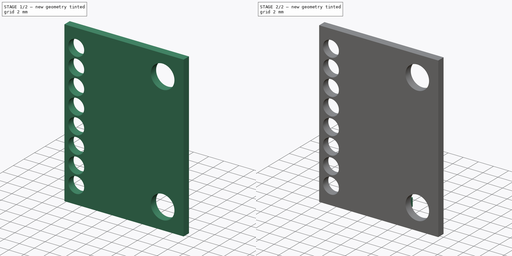
[diagram: build sequence overview — one tinted view per stage of 2, left to right]
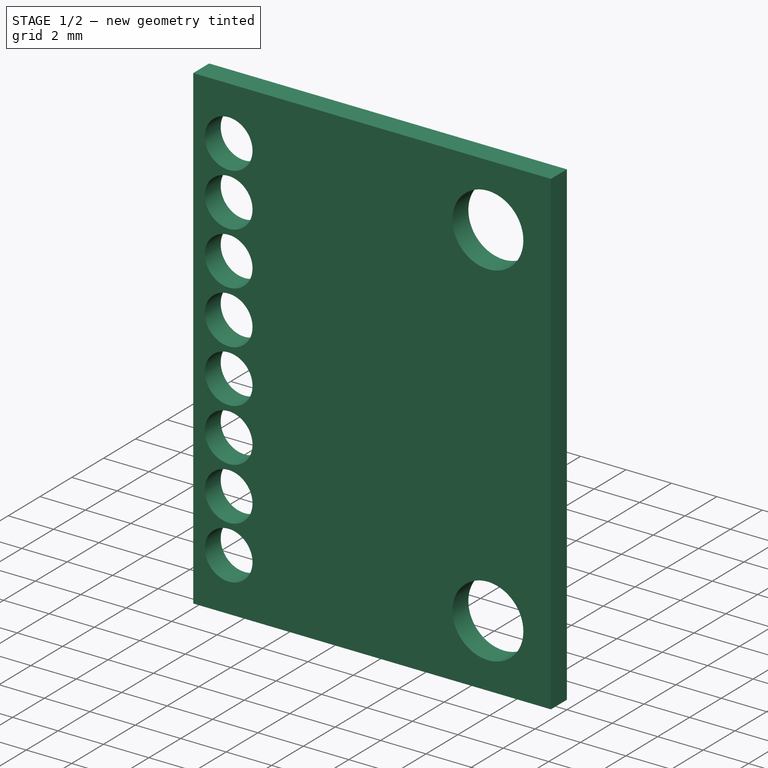
[diagram: stage 1 of 2 — iso view after this stage's code; geometry added in this stage tinted green]
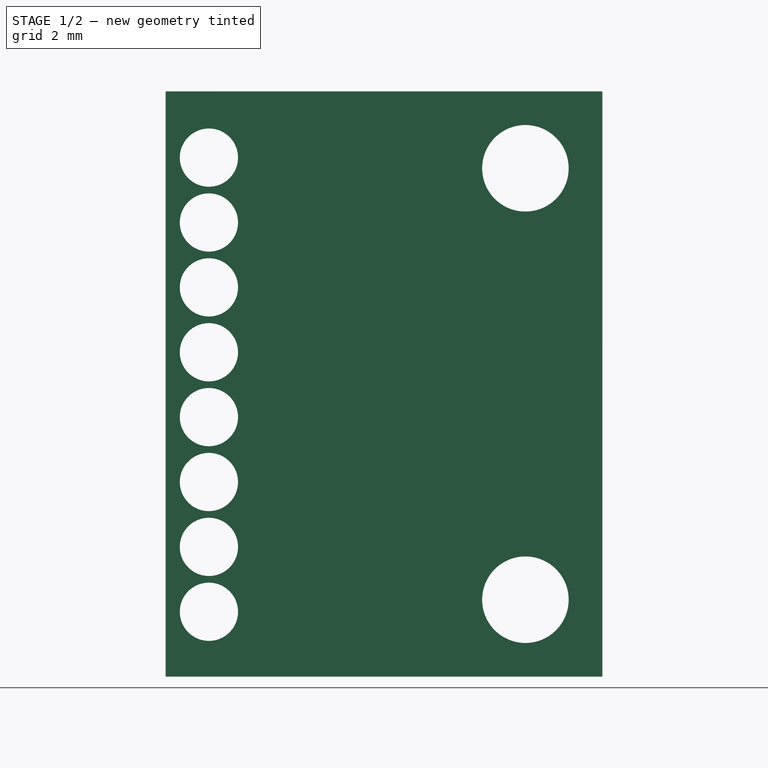
[diagram: stage 1 of 2 — front view after this stage's code; geometry added in this stage tinted green]
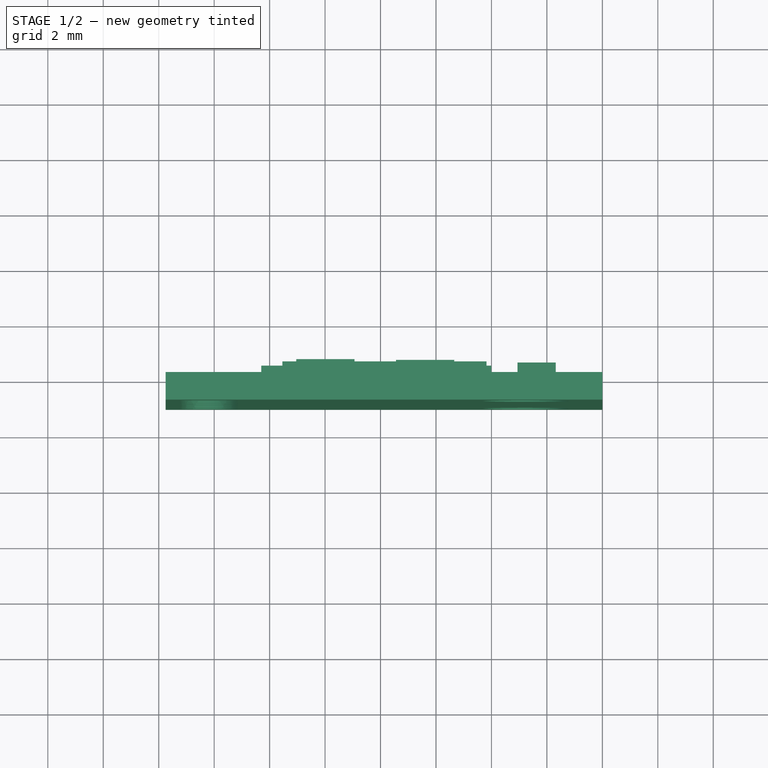
[diagram: stage 1 of 2 — top view after this stage's code; geometry added in this stage tinted green]
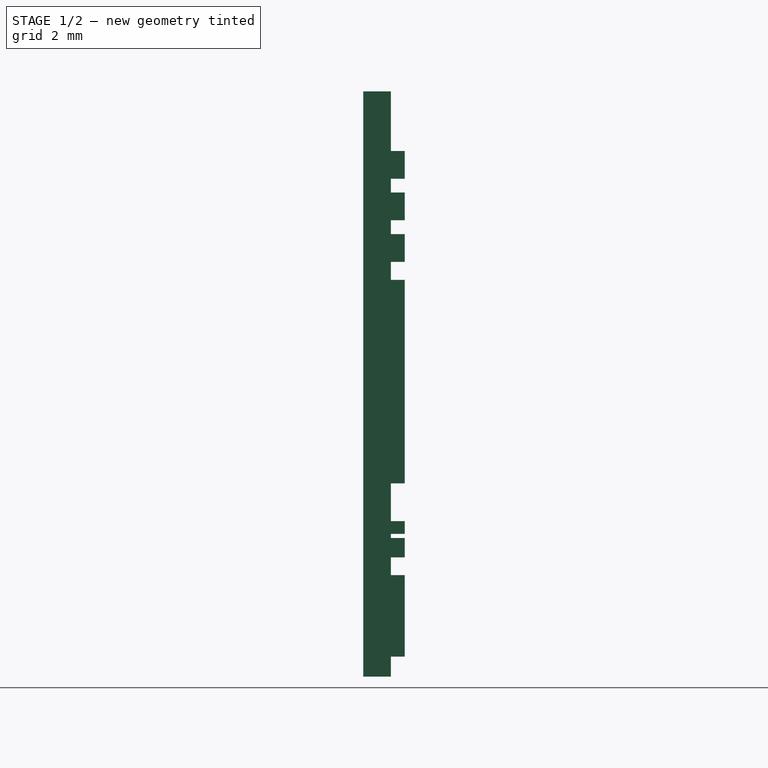
[diagram: stage 1 of 2 — right view after this stage's code; geometry added in this stage tinted green]
FCSTD DOCUMENT  (FreeCAD 1.0R38641 +678 (Git))
Label: MPU6050
License: All rights reserved
LicenseURL: https://en.wikipedia.org/wiki/All_rights_reserved
objects: Sketcher::SketchObject×3, PartDesign::Pad×3, PartDesign::CoordinateSystem×1, PartDesign::Body×1
note: 17 computed .brp shape members not serialized (recipe doc carries the construction recipe); baked Part::Feature solids carry a one-line shape summary decoded from their .brp

FEATURE [Sketcher::SketchObject] Sketch
  ArcFitTolerance = 1e-06
  AttachmentSupport = -> [XZ_Plane]
  FullyConstrained = true
  MakeInternals = false
  MapMode = 5
  Placement = pos=(0,0,0) rot=(1,0,0;1.5708rad)
  sketch-geometry (15):
    g0: LineSegment StartX=0 StartY=0 StartZ=0 EndX=-15.75 EndY=0 EndZ=0
    g1: LineSegment StartX=-15.75 StartY=0 StartZ=0 EndX=-15.75 EndY=-21.11 EndZ=0
    g2: LineSegment StartX=-15.75 StartY=-21.11 StartZ=0 EndX=0 EndY=-21.11 EndZ=0
    g3: LineSegment StartX=0 StartY=-21.11 StartZ=0 EndX=0 EndY=0 EndZ=0
    g4: Circle CenterX=-2.775 CenterY=-2.775 CenterZ=0 NormalX=0 NormalY=0 NormalZ=1 AngleXU=0 Radius=1.56
    g5: Circle CenterX=-2.775 CenterY=-18.335 CenterZ=0 NormalX=0 NormalY=0 NormalZ=1 AngleXU=0 Radius=1.56
    g6: Circle CenterX=-14.19 CenterY=-2.39 CenterZ=0 NormalX=0 NormalY=0 NormalZ=1 AngleXU=0 Radius=1.05
    g7: Circle CenterX=-14.19 CenterY=-4.73 CenterZ=0 NormalX=0 NormalY=0 NormalZ=1 AngleXU=0 Radius=1.05
    g8: Circle CenterX=-14.19 CenterY=-7.07 CenterZ=0 NormalX=0 NormalY=0 NormalZ=1 AngleXU=0 Radius=1.05
    g9: Circle CenterX=-14.19 CenterY=-9.41 CenterZ=0 NormalX=0 NormalY=0 NormalZ=1 AngleXU=0 Radius=1.05
    g10: Circle CenterX=-14.19 CenterY=-11.75 CenterZ=0 NormalX=0 NormalY=0 NormalZ=1 AngleXU=0 Radius=1.05
    g11: Circle CenterX=-14.19 CenterY=-14.09 CenterZ=0 NormalX=0 NormalY=0 NormalZ=1 AngleXU=0 Radius=1.05
    g12: Circle CenterX=-14.19 CenterY=-16.43 CenterZ=0 NormalX=0 NormalY=0 NormalZ=1 AngleXU=0 Radius=1.05
    g13: Circle CenterX=-14.19 CenterY=-18.77 CenterZ=0 NormalX=0 NormalY=0 NormalZ=1 AngleXU=0 Radius=1.05
    g14: LineSegment [constr] StartX=-14.19 StartY=0 StartZ=0 EndX=-14.19 EndY=-21.11 EndZ=0
  constraints (45):
    c: Coincident(g0,g1)
    c: Coincident(g1,g2)
    c: Coincident(g2,g3)
    c: Coincident(g3,g0)
    c: Horizontal(g0)
    c: Horizontal(g2)
    c: Vertical(g1)
    c: Vertical(g3)
    c: Coincident(g0,g-1)
    c: DistanceX(g2,g2) = 15.75
    c: DistanceY(g1,g1) = 21.11
    c: Equal(g5,g4)
    c: DistanceY(g5,g4) = 15.56
    c: Diameter(g4) = 3.12
    c: DistanceY(g4,g0) = 2.775
    c: DistanceX(g4,g0) = 2.775
    c: DistanceX(g5,g2) = 2.775
    c: Diameter(g6) = 2.1
    c: Equal(g6,g7)
    c: Equal(g7,g8)
    c: Equal(g8,g9)
    c: Equal(g9,g10)
    c: Equal(g10,g11)
    c: Equal(g11,g12)
    c: Equal(g12,g13)
    c: PointOnObject(g14,g0)
    c: PointOnObject(g14,g2)
    c: Vertical(g14)
    c: DistanceX(g0,g14) = 1.56
    c: PointOnObject(g6,g14)
    c: PointOnObject(g7,g14)
    c: PointOnObject(g8,g14)
    c: PointOnObject(g9,g14)
    c: PointOnObject(g10,g14)
    c: PointOnObject(g12,g14)
    c: PointOnObject(g11,g14)
    c: PointOnObject(g13,g14)
    c: DistanceY(g7,g6) = 2.34
    c: DistanceY(g8,g7) = 2.34
    c: DistanceY(g9,g8) = 2.34
    c: DistanceY(g10,g9) = 2.34
    c: DistanceY(g11,g10) = 2.34
    c: DistanceY(g12,g11) = 2.34
    c: DistanceY(g13,g12) = 2.34
    c: DistanceY(g6,g0) = 2.39
FEATURE [PartDesign::Pad] Pad  label="Pad_Plate"
  Direction = (0,-1,2e-16)
  Length = 1
  Length2 = 10
  Placement = pos=(0,0,0) rot=(1,0,0;1.5708rad)
  Profile = -> Sketch
  ReferenceAxis = -> Sketch [N_Axis]
  Refine = true
  Suppressed = false
  Type = 0
FEATURE [Sketcher::SketchObject] Sketch001
  ArcFitTolerance = 1e-06
  AttachmentSupport = -> [XZ_Plane]
  FullyConstrained = true
  MakeInternals = false
  MapMode = 5
  Placement = pos=(0,0,0) rot=(1,0,0;1.5708rad)
  sketch-geometry (76):
    g0: LineSegment StartX=-8.94 StartY=-2.15 StartZ=0 EndX=-11.04 EndY=-2.15 EndZ=0
    g1: LineSegment StartX=-11.04 StartY=-2.15 StartZ=0 EndX=-11.04 EndY=-3.15 EndZ=0
    g2: LineSegment StartX=-11.04 StartY=-3.15 StartZ=0 EndX=-8.94 EndY=-3.15 EndZ=0
    g3: LineSegment StartX=-8.94 StartY=-3.15 StartZ=0 EndX=-8.94 EndY=-2.15 EndZ=0
    g4: LineSegment StartX=-8.94 StartY=-3.65 StartZ=0 EndX=-11.04 EndY=-3.65 EndZ=0
    g5: LineSegment StartX=-11.04 StartY=-3.65 StartZ=0 EndX=-11.04 EndY=-4.65 EndZ=0
    g6: LineSegment StartX=-11.04 StartY=-4.65 StartZ=0 EndX=-8.94 EndY=-4.65 EndZ=0
    g7: LineSegment StartX=-8.94 StartY=-4.65 StartZ=0 EndX=-8.94 EndY=-3.65 EndZ=0
    g8: LineSegment StartX=-8.94 StartY=-5.15 StartZ=0 EndX=-11.04 EndY=-5.15 EndZ=0
    g9: LineSegment StartX=-11.04 StartY=-5.15 StartZ=0 EndX=-11.04 EndY=-6.15 EndZ=0
    g10: LineSegment StartX=-11.04 StartY=-6.15 StartZ=0 EndX=-8.94 EndY=-6.15 EndZ=0
    g11: LineSegment StartX=-8.94 StartY=-6.15 StartZ=0 EndX=-8.94 EndY=-5.15 EndZ=0
    g12: LineSegment StartX=-5.34 StartY=-3.65 StartZ=0 EndX=-7.44 EndY=-3.65 EndZ=0
    g13: LineSegment StartX=-7.44 StartY=-3.65 StartZ=0 EndX=-7.44 EndY=-4.65 EndZ=0
    g14: LineSegment StartX=-7.44 StartY=-4.65 StartZ=0 EndX=-5.34 EndY=-4.65 EndZ=0
    g15: LineSegment StartX=-5.34 StartY=-4.65 StartZ=0 EndX=-5.34 EndY=-3.65 EndZ=0
    g16: LineSegment StartX=-5.34 StartY=-5.15 StartZ=0 EndX=-7.44 EndY=-5.15 EndZ=0
    g17: LineSegment StartX=-7.44 StartY=-5.15 StartZ=0 EndX=-7.44 EndY=-6.15 EndZ=0
    g18: LineSegment StartX=-7.44 StartY=-6.15 StartZ=0 EndX=-5.34 EndY=-6.15 EndZ=0
    g19: LineSegment StartX=-5.34 StartY=-6.15 StartZ=0 EndX=-5.34 EndY=-5.15 EndZ=0
    g20: LineSegment StartX=-1.68 StartY=-9.16 StartZ=0 EndX=-3.06 EndY=-9.16 EndZ=0
    g21: LineSegment StartX=-3.06 StartY=-9.16 StartZ=0 EndX=-3.06 EndY=-13.54 EndZ=0
    g22: LineSegment StartX=-3.06 StartY=-13.54 StartZ=0 EndX=-1.68 EndY=-13.54 EndZ=0
    g23: LineSegment StartX=-1.68 StartY=-13.54 StartZ=0 EndX=-1.68 EndY=-9.16 EndZ=0
    g24: LineSegment StartX=-4.18 StartY=-6.8 StartZ=0 EndX=-11.54 EndY=-6.8 EndZ=0
    g25: LineSegment StartX=-11.54 StartY=-6.8 StartZ=0 EndX=-11.54 EndY=-14.14 EndZ=0
    g26: LineSegment StartX=-11.54 StartY=-14.14 StartZ=0 EndX=-4.18 EndY=-14.14 EndZ=0
    g27: LineSegment StartX=-4.18 StartY=-14.14 StartZ=0 EndX=-4.18 EndY=-6.8 EndZ=0
    g28: LineSegment StartX=-4 StartY=-15.5 StartZ=0 EndX=-7.4 EndY=-15.5 EndZ=0
    g29: LineSegment StartX=-7.4 StartY=-15.5 StartZ=0 EndX=-7.4 EndY=-15.96 EndZ=0
    g30: LineSegment StartX=-7.4 StartY=-15.96 StartZ=0 EndX=-4 EndY=-15.96 EndZ=0
    g31: LineSegment StartX=-4 StartY=-15.96 StartZ=0 EndX=-4 EndY=-15.5 EndZ=0
    g32: LineSegment StartX=-8.9 StartY=-15.5 StartZ=0 EndX=-12.3 EndY=-15.5 EndZ=0
    g33: LineSegment StartX=-12.3 StartY=-15.5 StartZ=0 EndX=-12.3 EndY=-15.96 EndZ=0
    g34: LineSegment StartX=-12.3 StartY=-15.96 StartZ=0 EndX=-8.9 EndY=-15.96 EndZ=0
    g35: LineSegment StartX=-8.9 StartY=-15.96 StartZ=0 EndX=-8.9 EndY=-15.5 EndZ=0
    g36: LineSegment StartX=-8.9 StartY=-16.11 StartZ=0 EndX=-12.3 EndY=-16.11 EndZ=0
    g37: LineSegment StartX=-12.3 StartY=-16.11 StartZ=0 EndX=-12.3 EndY=-16.81 EndZ=0
    g38: LineSegment StartX=-12.3 StartY=-16.81 StartZ=0 EndX=-8.9 EndY=-16.81 EndZ=0
    g39: LineSegment StartX=-8.9 StartY=-16.81 StartZ=0 EndX=-8.9 EndY=-16.11 EndZ=0
    g40: LineSegment StartX=-4 StartY=-16.11 StartZ=0 EndX=-7.4 EndY=-16.11 EndZ=0
    g41: LineSegment StartX=-7.4 StartY=-16.11 StartZ=0 EndX=-7.4 EndY=-16.81 EndZ=0
    g42: LineSegment StartX=-7.4 StartY=-16.81 StartZ=0 EndX=-4 EndY=-16.81 EndZ=0
    g43: LineSegment StartX=-4 StartY=-16.81 StartZ=0 EndX=-4 EndY=-16.11 EndZ=0
    g44: LineSegment StartX=-4.78 StartY=-17.8 StartZ=0 EndX=-5.58 EndY=-17.8 EndZ=0
    g45: LineSegment StartX=-5.58 StartY=-17.8 StartZ=0 EndX=-5.58 EndY=-20.1 EndZ=0
    g46: LineSegment StartX=-5.58 StartY=-20.1 StartZ=0 EndX=-4.78 EndY=-20.1 EndZ=0
    g47: LineSegment StartX=-4.78 StartY=-20.1 StartZ=0 EndX=-4.78 EndY=-17.8 EndZ=0
    g48: LineSegment StartX=-10.88 StartY=-17.8 StartZ=0 EndX=-11.68 EndY=-17.8 EndZ=0
    g49: LineSegment StartX=-11.68 StartY=-17.8 StartZ=0 EndX=-11.68 EndY=-20.1 EndZ=0
    g50: LineSegment StartX=-11.68 StartY=-20.1 StartZ=0 EndX=-10.88 EndY=-20.1 EndZ=0
    g51: LineSegment StartX=-10.88 StartY=-20.1 StartZ=0 EndX=-10.88 EndY=-17.8 EndZ=0
    g52: LineSegment StartX=-6.28 StartY=-17.8 StartZ=0 EndX=-6.73 EndY=-17.8 EndZ=0
    g53: LineSegment StartX=-6.73 StartY=-18.12 StartZ=0 EndX=-6.28 EndY=-18.12 EndZ=0
    g54: LineSegment StartX=-6.28 StartY=-18.12 StartZ=0 EndX=-6.28 EndY=-17.8 EndZ=0
    g55: LineSegment StartX=-6.28 StartY=-19.72 StartZ=0 EndX=-6.73 EndY=-19.72 EndZ=0
    g56: LineSegment StartX=-6.73 StartY=-20.04 StartZ=0 EndX=-6.28 EndY=-20.04 EndZ=0
    g57: LineSegment StartX=-6.28 StartY=-20.04 StartZ=0 EndX=-6.28 EndY=-19.72 EndZ=0
    g58: LineSegment StartX=-9.17 StartY=-17.915 StartZ=0 EndX=-9.95 EndY=-17.915 EndZ=0
    g59: LineSegment StartX=-9.95 StartY=-17.915 StartZ=0 EndX=-9.95 EndY=-18.275 EndZ=0
    g60: LineSegment StartX=-9.95 StartY=-18.275 StartZ=0 EndX=-9.17 EndY=-18.275 EndZ=0
    g61: LineSegment StartX=-9.17 StartY=-18.74 StartZ=0 EndX=-9.95 EndY=-18.74 EndZ=0
    g62: LineSegment StartX=-9.95 StartY=-18.74 StartZ=0 EndX=-9.95 EndY=-19.1 EndZ=0
    g63: LineSegment StartX=-9.95 StartY=-19.1 StartZ=0 EndX=-9.17 EndY=-19.1 EndZ=0
    g64: LineSegment StartX=-9.17 StartY=-19.565 StartZ=0 EndX=-9.95 EndY=-19.565 EndZ=0
    g65: LineSegment StartX=-9.95 StartY=-19.565 StartZ=0 EndX=-9.95 EndY=-19.925 EndZ=0
    g66: LineSegment StartX=-9.95 StartY=-19.925 StartZ=0 EndX=-9.17 EndY=-19.925 EndZ=0
    g67: LineSegment StartX=-6.73 StartY=-17.45 StartZ=0 EndX=-9.17 EndY=-17.45 EndZ=0
    g68: LineSegment StartX=-9.17 StartY=-17.45 StartZ=0 EndX=-9.17 EndY=-17.915 EndZ=0
    g69: LineSegment StartX=-9.17 StartY=-20.39 StartZ=0 EndX=-6.73 EndY=-20.39 EndZ=0
    g70: LineSegment StartX=-6.73 StartY=-20.39 StartZ=0 EndX=-6.73 EndY=-20.04 EndZ=0
    g71: LineSegment StartX=-6.73 StartY=-17.8 StartZ=0 EndX=-6.73 EndY=-17.45 EndZ=0
    g72: LineSegment StartX=-6.73 StartY=-19.72 StartZ=0 EndX=-6.73 EndY=-18.12 EndZ=0
    g73: LineSegment StartX=-9.17 StartY=-18.275 StartZ=0 EndX=-9.17 EndY=-18.74 EndZ=0
    g74: LineSegment StartX=-9.17 StartY=-19.1 StartZ=0 EndX=-9.17 EndY=-19.565 EndZ=0
    g75: LineSegment StartX=-9.17 StartY=-19.925 StartZ=0 EndX=-9.17 EndY=-20.39 EndZ=0
  constraints (228):
    c: Coincident(g0,g1)
    c: Coincident(g1,g2)
    c: Coincident(g2,g3)
    c: Coincident(g3,g0)
    c: Horizontal(g0)
    c: Horizontal(g2)
    c: Vertical(g1)
    c: Vertical(g3)
    c: Coincident(g4,g5)
    c: Coincident(g5,g6)
    c: Coincident(g6,g7)
    c: Coincident(g7,g4)
    c: Horizontal(g4)
    c: Horizontal(g6)
    c: Vertical(g5)
    c: Vertical(g7)
    c: Coincident(g8,g9)
    c: Coincident(g9,g10)
    c: Coincident(g10,g11)
    c: Coincident(g11,g8)
    c: Horizontal(g8)
    c: Horizontal(g10)
    c: Vertical(g9)
    c: Vertical(g11)
    c: Coincident(g12,g13)
    c: Coincident(g13,g14)
    c: Coincident(g14,g15)
    c: Coincident(g15,g12)
    c: Horizontal(g12)
    c: Horizontal(g14)
    c: Vertical(g13)
    c: Vertical(g15)
    c: Coincident(g16,g17)
    c: Coincident(g17,g18)
    c: Coincident(g18,g19)
    c: Coincident(g19,g16)
    c: Horizontal(g16)
    c: Horizontal(g18)
    c: Vertical(g17)
    c: Vertical(g19)
    c: Coincident(g20,g21)
    c: Coincident(g21,g22)
    c: Coincident(g22,g23)
    c: Coincident(g23,g20)
    c: Horizontal(g20)
    c: Horizontal(g22)
    c: Vertical(g21)
    c: Vertical(g23)
    c: Coincident(g24,g25)
    c: Coincident(g25,g26)
    c: Coincident(g26,g27)
    c: Coincident(g27,g24)
    c: Horizontal(g24)
    c: Horizontal(g26)
    c: Vertical(g25)
    c: Vertical(g27)
    c: Coincident(g28,g29)
    c: Coincident(g29,g30)
    c: Coincident(g30,g31)
    c: Coincident(g31,g28)
    c: Horizontal(g28)
    c: Horizontal(g30)
    c: Vertical(g29)
    c: Vertical(g31)
    c: Coincident(g32,g33)
    c: Coincident(g33,g34)
    c: Coincident(g34,g35)
    c: Coincident(g35,g32)
    c: Horizontal(g32)
    c: Horizontal(g34)
    c: Vertical(g33)
    c: Vertical(g35)
    c: Coincident(g36,g37)
    c: Coincident(g37,g38)
    c: Coincident(g38,g39)
    c: Coincident(g39,g36)
    c: Horizontal(g36)
    c: Horizontal(g38)
    c: Vertical(g37)
    c: Vertical(g39)
    c: Coincident(g40,g41)
    c: Coincident(g41,g42)
    c: Coincident(g42,g43)
    c: Coincident(g43,g40)
    c: Horizontal(g40)
    c: Horizontal(g42)
    c: Vertical(g41)
    c: Vertical(g43)
    c: Coincident(g44,g45)
    c: Coincident(g45,g46)
    c: Coincident(g46,g47)
    c: Coincident(g47,g44)
    c: Horizontal(g44)
    c: Horizontal(g46)
    c: Vertical(g45)
    c: Vertical(g47)
    c: Coincident(g48,g49)
    c: Coincident(g49,g50)
    c: Coincident(g50,g51)
    c: Coincident(g51,g48)
    c: Horizontal(g48)
    c: Horizontal(g50)
    c: Vertical(g49)
    c: Vertical(g51)
    c: Coincident(g53,g54)
    c: Coincident(g54,g52)
    c: Horizontal(g52)
    c: Horizontal(g53)
    c: Vertical(g54)
    c: Coincident(g56,g57)
    c: Coincident(g57,g55)
    c: Horizontal(g55)
    c: Horizontal(g56)
    c: Vertical(g57)
    c: Coincident(g58,g59)
    c: Coincident(g59,g60)
    c: Horizontal(g58)
    c: Horizontal(g60)
    c: Vertical(g59)
    c: Coincident(g61,g62)
    c: Coincident(g62,g63)
    c: Horizontal(g61)
    c: Horizontal(g63)
    c: Vertical(g62)
    c: Coincident(g64,g65)
    c: Coincident(g65,g66)
    c: Horizontal(g64)
    c: Horizontal(g66)
    c: Vertical(g65)
    c: Coincident(g67,g68)
    c: Coincident(g75,g69)
    c: Coincident(g69,g70)
    c: Coincident(g71,g67)
    c: Horizontal(g67)
    c: Horizontal(g69)
    c: Vertical(g68)
    c: Vertical(g70)
    c: Equal(g0,g4)
    c: Equal(g4,g8)
    c: Equal(g8,g16)
    c: Equal(g16,g12)
    c: Equal(g19,g11)
    c: Equal(g11,g15)
    c: Equal(g15,g7)
    c: Equal(g7,g3)
    c: DistanceX(g0,g0) = 2.1
    c: DistanceY(g1,g1) = 1
    c: DistanceX(g0,g-1) = 8.94
    c: DistanceX(g4,g12) = 1.5
    c: DistanceY(g4,g1) = 0.5
    c: DistanceY(g8,g5) = 0.5
    c: PointOnObject(g17,g10)
    c: PointOnObject(g13,g6)
    c: PointOnObject(g13,g17)
    c: PointOnObject(g6,g11)
    c: DistanceY(g0,g-1) = 2.15
    c: PointOnObject(g4,g3)
    c: DistanceX(g24,g24) = 7.36
    c: DistanceY(g27,g27) = 7.34
    c: DistanceX(g24,g-1) = 4.18
    c: DistanceY(g24,g-1) = 6.8
    c: DistanceX(g20,g20) = 1.38
    c: DistanceY(g23,g23) = 4.38
    c: DistanceX(g20,g-1) = 1.68
    c: DistanceY(g20,g-1) = 9.16
    c: Equal(g28,g40)
    c: Equal(g40,g32)
    c: Equal(g32,g36)
    c: Equal(g29,g35)
    c: Equal(g43,g39)
    c: PointOnObject(g30,g43)
    c: PointOnObject(g34,g39)
    c: PointOnObject(g40,g36)
    c: PointOnObject(g29,g34)
    c: DistanceX(g28,g28) = 3.4
    c: DistanceY(g31,g31) = 0.46
    c: DistanceY(g40,g30) = 0.15
    c: DistanceY(g43,g43) = 0.7
    c: DistanceX(g32,g28) = 1.5
    c: DistanceX(g28,g-1) = 4
    c: DistanceY(g28,g-1) = 15.5
    c: Equal(g44,g48)
    c: Equal(g47,g51)
    c: PointOnObject(g44,g48)
    c: DistanceX(g46,g46) = 0.8
    c: DistanceY(g47,g47) = 2.3
    c: DistanceX(g46,g-1) = 4.78
    c: DistanceY(g44,g-1) = 17.8
    c: DistanceX(g50,g45) = 5.3
    c: Coincident(g72,g55)
    c: Coincident(g56,g70)
    c: Vertical(g72)
    c: PointOnObject(g56,g72)
    c: Vertical(g71)
    c: Coincident(g72,g53)
    c: Coincident(g52,g71)
    c: Coincident(g58,g68)
    c: Coincident(g73,g60)
    c: Coincident(g61,g73)
    c: Coincident(g74,g63)
    c: Coincident(g64,g74)
    c: Coincident(g66,g75)
    c: Vertical(g74)
    c: Vertical(g75)
    c: PointOnObject(g58,g73)
    c: Vertical(g73)
    c: PointOnObject(g61,g74)
    c: PointOnObject(g64,g75)
    c: Equal(g58,g61)
    c: Equal(g61,g64)
    c: Equal(g59,g62)
    c: Equal(g62,g65)
    c: Equal(g52,g55)
    c: Equal(g54,g57)
    c: Equal(g71,g70)
    c: Equal(g68,g73)
    c: Equal(g73,g74)
    c: Equal(g74,g75)
    c: DistanceY(g71,g71) = 0.35
    c: DistanceY(g54,g54) = 0.32
    c: PointOnObject(g52,g72)
    c: DistanceX(g52,g52) = 0.45
    c: DistanceX(g53,g44) = 0.7
    c: DistanceY(g72,g72) = 1.6
    c: PointOnObject(g52,g44)
    c: DistanceX(g67,g67) = 2.44
    c: DistanceX(g58,g58) = 0.78
    c: DistanceY(g59,g59) = 0.36
FEATURE [PartDesign::Pad] Pad001  label="Pad_Circuit1"
  BaseFeature = -> Pad
  Direction = (0,-1,2e-16)
  Length = 0.5
  Length2 = 10
  Placement = pos=(0,0,0) rot=(1,0,0;1.5708rad)
  Profile = -> Sketch001
  ReferenceAxis = -> Sketch001 [N_Axis]
  Refine = true
  Reversed = true
  Suppressed = false
  Type = 0
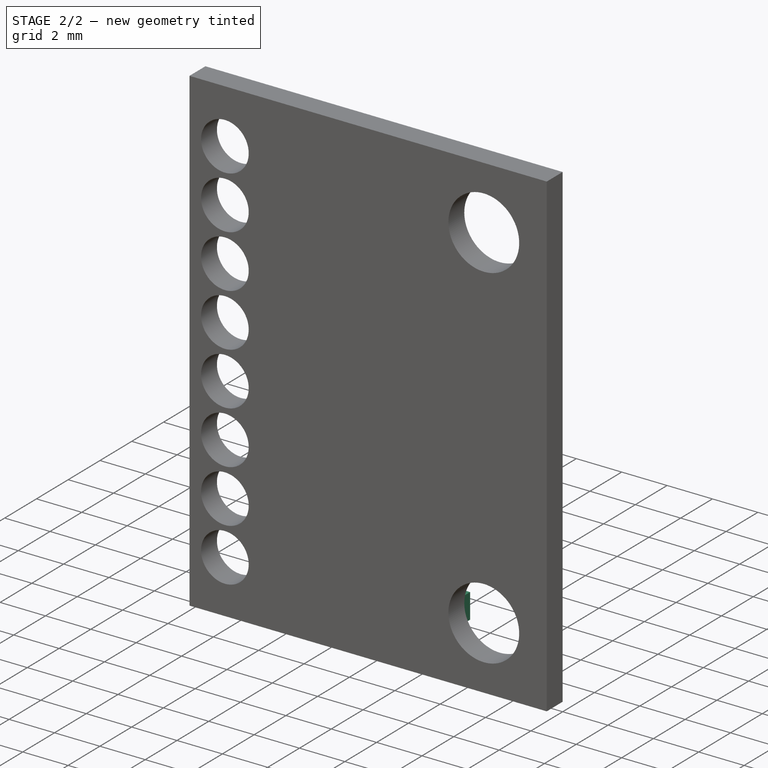
[diagram: stage 2 of 2 — iso view after this stage's code; geometry added in this stage tinted green]
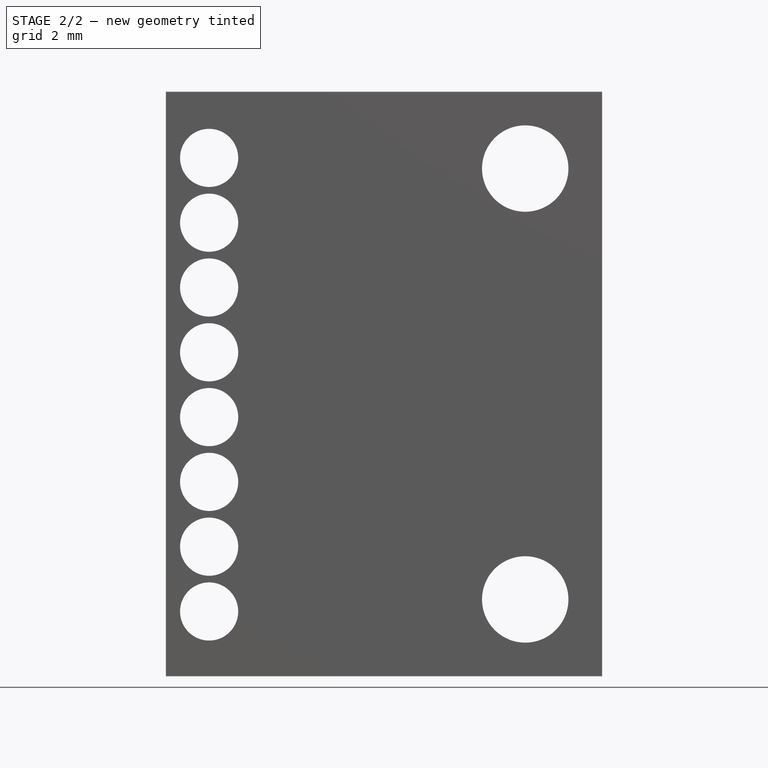
[diagram: stage 2 of 2 — front view after this stage's code; geometry added in this stage tinted green]
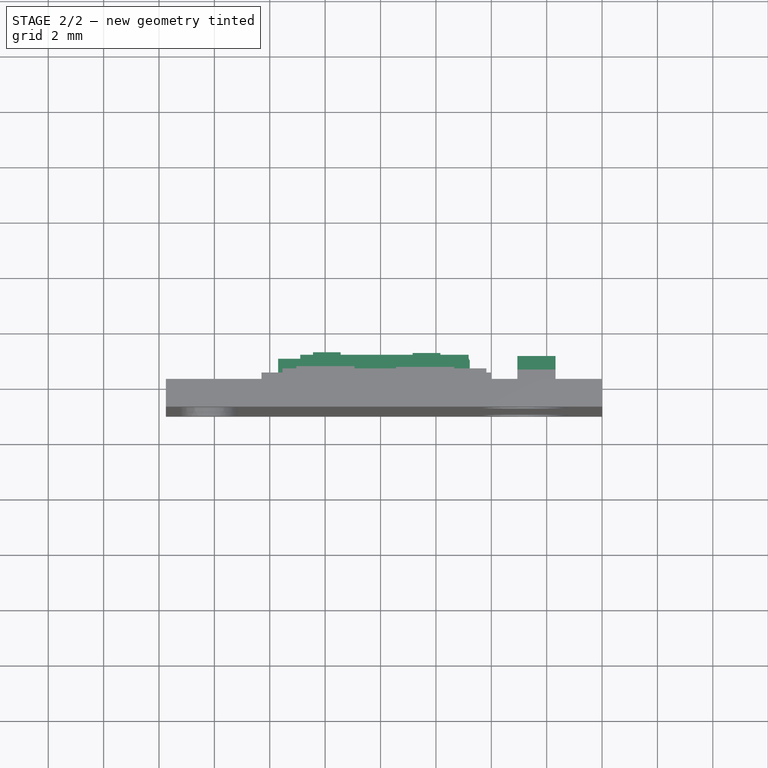
[diagram: stage 2 of 2 — top view after this stage's code; geometry added in this stage tinted green]
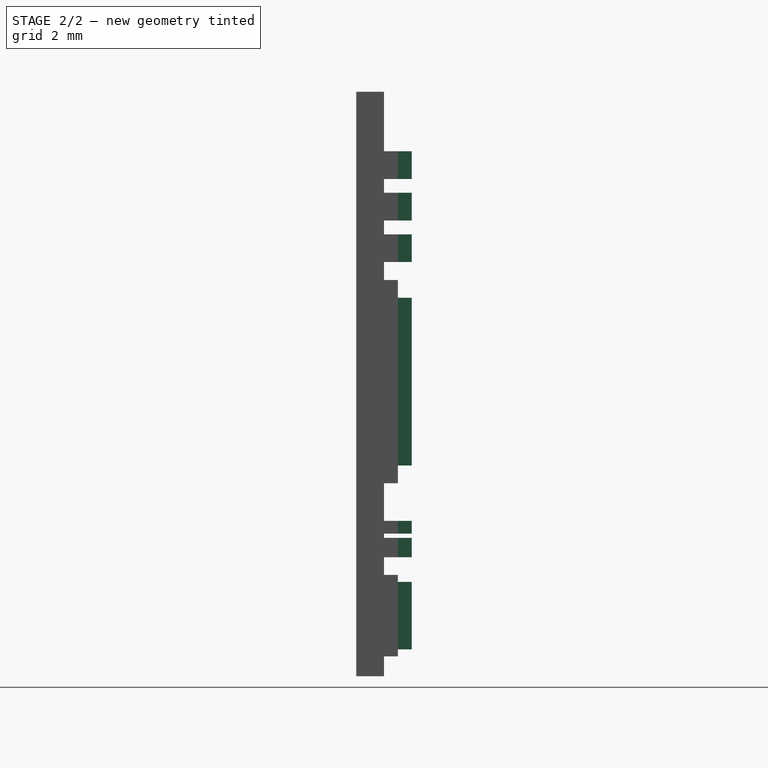
[diagram: stage 2 of 2 — right view after this stage's code; geometry added in this stage tinted green]
FEATURE [Sketcher::SketchObject] Sketch002
  ArcFitTolerance = 1e-06
  AttachmentOffset = pos=(0,0,-0.5) rot=(0,0,1;0rad)
  AttachmentSupport = -> [XZ_Plane]
  ExternalGeometry = -> [Pad001]
  FullyConstrained = true
  MakeInternals = false
  MapMode = 5
  Placement = pos=(0,0.5,-1e-16) rot=(1,0,0;1.5708rad)
  sketch-geometry (56):
    g0: LineSegment StartX=-9.44 StartY=-2.15 StartZ=0 EndX=-10.44 EndY=-2.15 EndZ=0
    g1: LineSegment StartX=-10.44 StartY=-2.15 StartZ=0 EndX=-10.44 EndY=-3.15 EndZ=0
    g2: LineSegment StartX=-10.44 StartY=-3.15 StartZ=0 EndX=-9.44 EndY=-3.15 EndZ=0
    g3: LineSegment StartX=-9.44 StartY=-3.15 StartZ=0 EndX=-9.44 EndY=-2.15 EndZ=0
    g4: LineSegment StartX=-5.84 StartY=-3.65 StartZ=0 EndX=-6.84 EndY=-3.65 EndZ=0
    g5: LineSegment StartX=-6.84 StartY=-3.65 StartZ=0 EndX=-6.84 EndY=-4.65 EndZ=0
    g6: LineSegment StartX=-6.84 StartY=-4.65 StartZ=0 EndX=-5.84 EndY=-4.65 EndZ=0
    g7: LineSegment StartX=-5.84 StartY=-4.65 StartZ=0 EndX=-5.84 EndY=-3.65 EndZ=0
    g8: LineSegment StartX=-9.44 StartY=-3.65 StartZ=0 EndX=-10.44 EndY=-3.65 EndZ=0
    g9: LineSegment StartX=-10.44 StartY=-3.65 StartZ=0 EndX=-10.44 EndY=-4.65 EndZ=0
    g10: LineSegment StartX=-10.44 StartY=-4.65 StartZ=0 EndX=-9.44 EndY=-4.65 EndZ=0
    g11: LineSegment StartX=-9.44 StartY=-4.65 StartZ=0 EndX=-9.44 EndY=-3.65 EndZ=0
    g12: LineSegment StartX=-9.44 StartY=-5.15 StartZ=0 EndX=-10.44 EndY=-5.15 EndZ=0
    g13: LineSegment StartX=-10.44 StartY=-5.15 StartZ=0 EndX=-10.44 EndY=-6.15 EndZ=0
    g14: LineSegment StartX=-10.44 StartY=-6.15 StartZ=0 EndX=-9.44 EndY=-6.15 EndZ=0
    g15: LineSegment StartX=-9.44 StartY=-6.15 StartZ=0 EndX=-9.44 EndY=-5.15 EndZ=0
    g16: LineSegment StartX=-5.84 StartY=-5.15 StartZ=0 EndX=-6.84 EndY=-5.15 EndZ=0
    g17: LineSegment StartX=-6.84 StartY=-5.15 StartZ=0 EndX=-6.84 EndY=-6.15 EndZ=0
    g18: LineSegment StartX=-6.84 StartY=-6.15 StartZ=0 EndX=-5.84 EndY=-6.15 EndZ=0
    g19: LineSegment StartX=-5.84 StartY=-6.15 StartZ=0 EndX=-5.84 EndY=-5.15 EndZ=0
    g20: LineSegment StartX=-1.68 StartY=-9.96 StartZ=0 EndX=-3.06 EndY=-9.96 EndZ=0
    g21: LineSegment StartX=-3.06 StartY=-9.96 StartZ=0 EndX=-3.06 EndY=-12.74 EndZ=0
    g22: LineSegment StartX=-3.06 StartY=-12.74 StartZ=0 EndX=-1.68 EndY=-12.74 EndZ=0
    g23: LineSegment StartX=-1.68 StartY=-12.74 StartZ=0 EndX=-1.68 EndY=-9.96 EndZ=0
    g24: LineSegment StartX=-4.82 StartY=-7.44 StartZ=0 EndX=-10.9 EndY=-7.44 EndZ=0
    g25: LineSegment StartX=-10.9 StartY=-7.44 StartZ=0 EndX=-10.9 EndY=-13.5 EndZ=0
    g26: LineSegment StartX=-10.9 StartY=-13.5 StartZ=0 EndX=-4.82 EndY=-13.5 EndZ=0
    g27: LineSegment StartX=-4.82 StartY=-13.5 StartZ=0 EndX=-4.82 EndY=-7.44 EndZ=0
    g28: LineSegment StartX=-4.8 StartY=-15.5 StartZ=0 EndX=-6.6 EndY=-15.5 EndZ=0
    g29: LineSegment StartX=-6.6 StartY=-15.5 StartZ=0 EndX=-6.6 EndY=-15.96 EndZ=0
    g30: LineSegment StartX=-6.6 StartY=-15.96 StartZ=0 EndX=-4.8 EndY=-15.96 EndZ=0
    g31: LineSegment StartX=-4.8 StartY=-15.96 StartZ=0 EndX=-4.8 EndY=-15.5 EndZ=0
    g32: LineSegment StartX=-4.8 StartY=-16.11 StartZ=0 EndX=-6.6 EndY=-16.11 EndZ=0
    g33: LineSegment StartX=-6.6 StartY=-16.11 StartZ=0 EndX=-6.6 EndY=-16.81 EndZ=0
    g34: LineSegment StartX=-6.6 StartY=-16.81 StartZ=0 EndX=-4.8 EndY=-16.81 EndZ=0
    g35: LineSegment StartX=-4.8 StartY=-16.81 StartZ=0 EndX=-4.8 EndY=-16.11 EndZ=0
    g36: LineSegment StartX=-9.5 StartY=-15.5 StartZ=0 EndX=-11.7 EndY=-15.5 EndZ=0
    g37: LineSegment StartX=-11.7 StartY=-15.5 StartZ=0 EndX=-11.7 EndY=-15.96 EndZ=0
    g38: LineSegment StartX=-11.7 StartY=-15.96 StartZ=0 EndX=-9.5 EndY=-15.96 EndZ=0
    g39: LineSegment StartX=-9.5 StartY=-15.96 StartZ=0 EndX=-9.5 EndY=-15.5 EndZ=0
    g40: LineSegment StartX=-9.5 StartY=-16.11 StartZ=0 EndX=-11.7 EndY=-16.11 EndZ=0
    g41: LineSegment StartX=-11.7 StartY=-16.11 StartZ=0 EndX=-11.7 EndY=-16.81 EndZ=0
    g42: LineSegment StartX=-11.7 StartY=-16.81 StartZ=0 EndX=-9.5 EndY=-16.81 EndZ=0
    g43: LineSegment StartX=-9.5 StartY=-16.81 StartZ=0 EndX=-9.5 EndY=-16.11 EndZ=0
    g44: LineSegment StartX=-4.78 StartY=-18.4 StartZ=0 EndX=-5.58 EndY=-18.4 EndZ=0
    g45: LineSegment StartX=-5.58 StartY=-18.4 StartZ=0 EndX=-5.58 EndY=-19.5 EndZ=0
    g46: LineSegment StartX=-5.58 StartY=-19.5 StartZ=0 EndX=-4.78 EndY=-19.5 EndZ=0
    g47: LineSegment StartX=-4.78 StartY=-19.5 StartZ=0 EndX=-4.78 EndY=-18.4 EndZ=0
    g48: LineSegment StartX=-6.98 StartY=-17.7 StartZ=0 EndX=-8.92 EndY=-17.7 EndZ=0
    g49: LineSegment StartX=-8.92 StartY=-17.7 StartZ=0 EndX=-8.92 EndY=-20.14 EndZ=0
    g50: LineSegment StartX=-8.92 StartY=-20.14 StartZ=0 EndX=-6.98 EndY=-20.14 EndZ=0
    g51: LineSegment StartX=-6.98 StartY=-20.14 StartZ=0 EndX=-6.98 EndY=-17.7 EndZ=0
    g52: LineSegment StartX=-10.88 StartY=-18.4 StartZ=0 EndX=-11.68 EndY=-18.4 EndZ=0
    g53: LineSegment StartX=-11.68 StartY=-18.4 StartZ=0 EndX=-11.68 EndY=-19.5 EndZ=0
    g54: LineSegment StartX=-11.68 StartY=-19.5 StartZ=0 EndX=-10.88 EndY=-19.5 EndZ=0
    g55: LineSegment StartX=-10.88 StartY=-19.5 StartZ=0 EndX=-10.88 EndY=-18.4 EndZ=0
  constraints (168):
    c: Coincident(g0,g1)
    c: Coincident(g1,g2)
    c: Coincident(g2,g3)
    c: Coincident(g3,g0)
    c: Horizontal(g0)
    c: Horizontal(g2)
    c: Vertical(g1)
    c: Vertical(g3)
    c: Coincident(g4,g5)
    c: Coincident(g5,g6)
    c: Coincident(g6,g7)
    c: Coincident(g7,g4)
    c: Horizontal(g4)
    c: Horizontal(g6)
    c: Vertical(g5)
    c: Vertical(g7)
    c: Coincident(g8,g9)
    c: Coincident(g9,g10)
    c: Coincident(g10,g11)
    c: Coincident(g11,g8)
    c: Horizontal(g8)
    c: Horizontal(g10)
    c: Vertical(g9)
    c: Vertical(g11)
    c: Coincident(g12,g13)
    c: Coincident(g13,g14)
    c: Coincident(g14,g15)
    c: Coincident(g15,g12)
    c: Horizontal(g12)
    c: Horizontal(g14)
    c: Vertical(g13)
    c: Vertical(g15)
    c: Coincident(g16,g17)
    c: Coincident(g17,g18)
    c: Coincident(g18,g19)
    c: Coincident(g19,g16)
    c: Horizontal(g16)
    c: Horizontal(g18)
    c: Vertical(g17)
    c: Vertical(g19)
    c: Coincident(g20,g21)
    c: Coincident(g21,g22)
    c: Coincident(g22,g23)
    c: Coincident(g23,g20)
    c: Horizontal(g20)
    c: Horizontal(g22)
    c: Vertical(g21)
    c: Vertical(g23)
    c: Coincident(g24,g25)
    c: Coincident(g25,g26)
    c: Coincident(g26,g27)
    c: Coincident(g27,g24)
    c: Horizontal(g24)
    c: Horizontal(g26)
    c: Vertical(g25)
    c: Vertical(g27)
    c: Coincident(g28,g29)
    c: Coincident(g29,g30)
    c: Coincident(g30,g31)
    c: Coincident(g31,g28)
    c: Horizontal(g28)
    c: Horizontal(g30)
    c: Vertical(g29)
    c: Vertical(g31)
    c: Coincident(g32,g33)
    c: Coincident(g33,g34)
    c: Coincident(g34,g35)
    c: Coincident(g35,g32)
    c: Horizontal(g32)
    c: Horizontal(g34)
    c: Vertical(g33)
    c: Vertical(g35)
    c: Coincident(g36,g37)
    c: Coincident(g37,g38)
    c: Coincident(g38,g39)
    c: Coincident(g39,g36)
    c: Horizontal(g36)
    c: Horizontal(g38)
    c: Vertical(g37)
    c: Vertical(g39)
    c: Coincident(g40,g41)
    c: Coincident(g41,g42)
    c: Coincident(g42,g43)
    c: Coincident(g43,g40)
    c: Horizontal(g40)
    c: Horizontal(g42)
    c: Vertical(g41)
    c: Vertical(g43)
    c: Coincident(g44,g45)
    c: Coincident(g45,g46)
    c: Coincident(g46,g47)
    c: Coincident(g47,g44)
    c: Horizontal(g44)
    c: Horizontal(g46)
    c: Vertical(g45)
    c: Vertical(g47)
    c: Coincident(g48,g49)
    c: Coincident(g49,g50)
    c: Coincident(g50,g51)
    c: Coincident(g51,g48)
    c: Horizontal(g48)
    c: Horizontal(g50)
    c: Vertical(g49)
    c: Vertical(g51)
    c: Coincident(g52,g53)
    c: Coincident(g53,g54)
    c: Coincident(g54,g55)
    c: Coincident(g55,g52)
    c: Horizontal(g52)
    c: Horizontal(g54)
    c: Vertical(g53)
    c: Vertical(g55)
    c: Equal(g0,g3)
    c: Equal(g3,g4)
    c: Equal(g4,g7)
    c: Equal(g7,g16)
    c: Equal(g16,g19)
    c: Equal(g19,g12)
    c: Equal(g12,g15)
    c: Equal(g15,g8)
    c: Equal(g8,g11)
    c: PointOnObject(g0,g-3)
    c: PointOnObject(g2,g-4)
    c: DistanceX(g-4,g1) = 0.6
    c: PointOnObject(g8,g-5)
    c: PointOnObject(g1,g9)
    c: PointOnObject(g12,g-6)
    c: PointOnObject(g9,g13)
    c: PointOnObject(g5,g17)
    c: PointOnObject(g4,g8)
    c: PointOnObject(g16,g12)
    c: DistanceX(g-7,g4) = 0.6
    c: DistanceX(g-8,g24) = 0.64
    c: DistanceY(g24,g-8) = 0.64
    c: DistanceX(g26,g-9) = 0.64
    c: DistanceY(g-9,g26) = 0.64
    c: PointOnObject(g20,g-11)
    c: PointOnObject(g20,g-10)
    c: DistanceY(g20,g-10) = 0.8
    c: DistanceY(g-10,g21) = 0.8
    c: DistanceX(g50,g-25) = 0.25
    c: DistanceY(g-25,g50) = 0.25
    c: DistanceY(g48,g-24) = 0.25
    c: DistanceX(g-24,g48) = 0.25
    c: PointOnObject(g28,g-12)
    c: PointOnObject(g29,g-13)
    c: DistanceX(g-12,g28) = 0.8
    c: DistanceX(g28,g-12) = 0.8
    c: PointOnObject(g32,g-14)
    c: PointOnObject(g33,g-15)
    c: PointOnObject(g29,g33)
    c: PointOnObject(g30,g35)
    c: PointOnObject(g36,g-16)
    c: PointOnObject(g37,g-17)
    c: DistanceX(g-16,g36) = 0.6
    c: DistanceX(g36,g-16) = 0.6
    c: PointOnObject(g40,g-18)
    c: PointOnObject(g41,g-19)
    c: PointOnObject(g37,g41)
    c: PointOnObject(g38,g43)
    c: PointOnObject(g52,g-23)
    c: PointOnObject(g54,g-22)
    c: DistanceY(g52,g-22) = 0.6
    c: DistanceY(g-23,g53) = 0.6
    c: PointOnObject(g44,g-20)
    c: PointOnObject(g46,g-21)
    c: PointOnObject(g44,g52)
    c: PointOnObject(g45,g54)
FEATURE [PartDesign::Pad] Pad002  label="Pad_Circuit2"
  BaseFeature = -> Pad001
  Direction = (0,-1,2e-16)
  Length = 1
  Length2 = 10
  Midplane = true
  Placement = pos=(0,0,0) rot=(1,0,0;1.5708rad)
  Profile = -> Sketch002
  ReferenceAxis = -> Sketch002 [N_Axis]
  Refine = true
  Suppressed = false
  Type = 0
FEATURE [PartDesign::CoordinateSystem] MPU6050
  AttacherType = Attacher::AttachEngine3D
  AttachmentOffset = pos=(0,0,0) rot=(-0.57735,0.57735,-0.57735;2.0944rad)
  AttachmentSupport = -> [Pad002]
  MapMode = 11
  Placement = pos=(-2.775,-6e-16,-2.775) rot=(0,0,1;0rad)
FEATURE [PartDesign::Body] Body  label="Body_MPU6050"
  AllowCompound = false
  Group = -> [Sketch,Pad,Sketch001,Pad001,Sketch002,Pad002,MPU6050]
  Origin = -> Origin
  Tip = -> Pad002
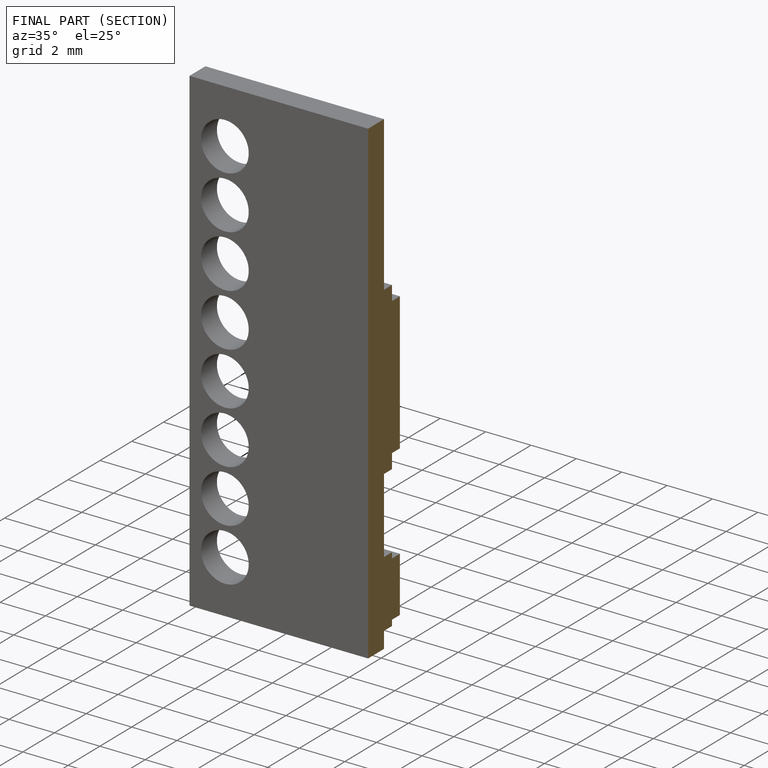
[diagram: finished part — half-section view (interior)]
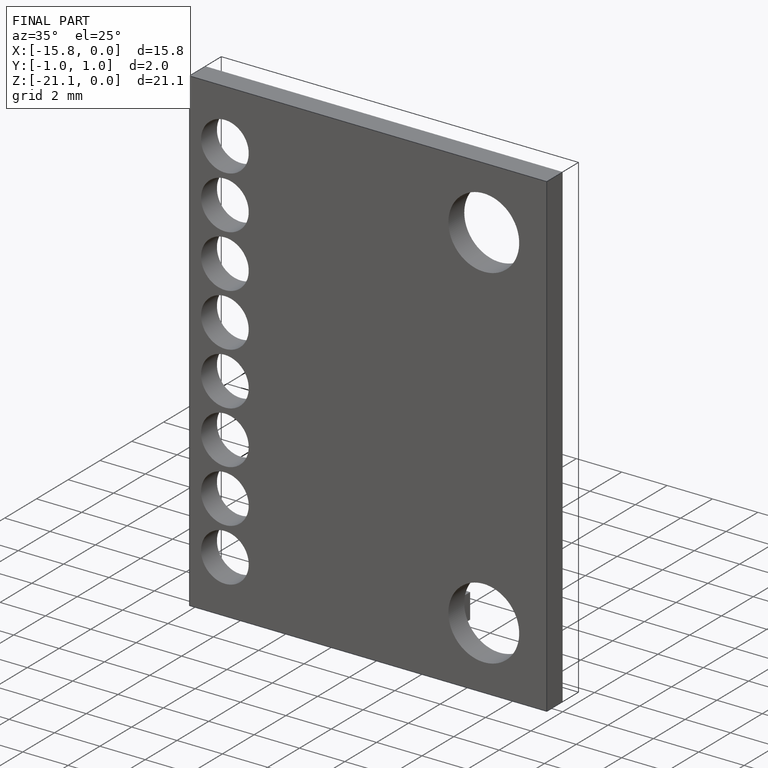
[diagram: finished part — iso view with bounding-box wireframe]
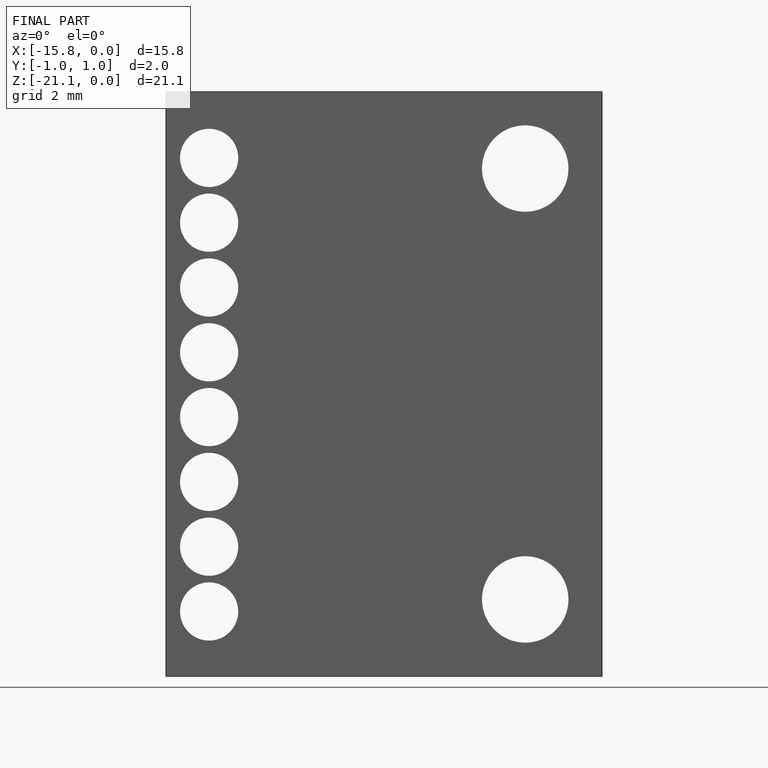
[diagram: finished part — front view with bounding-box wireframe]
